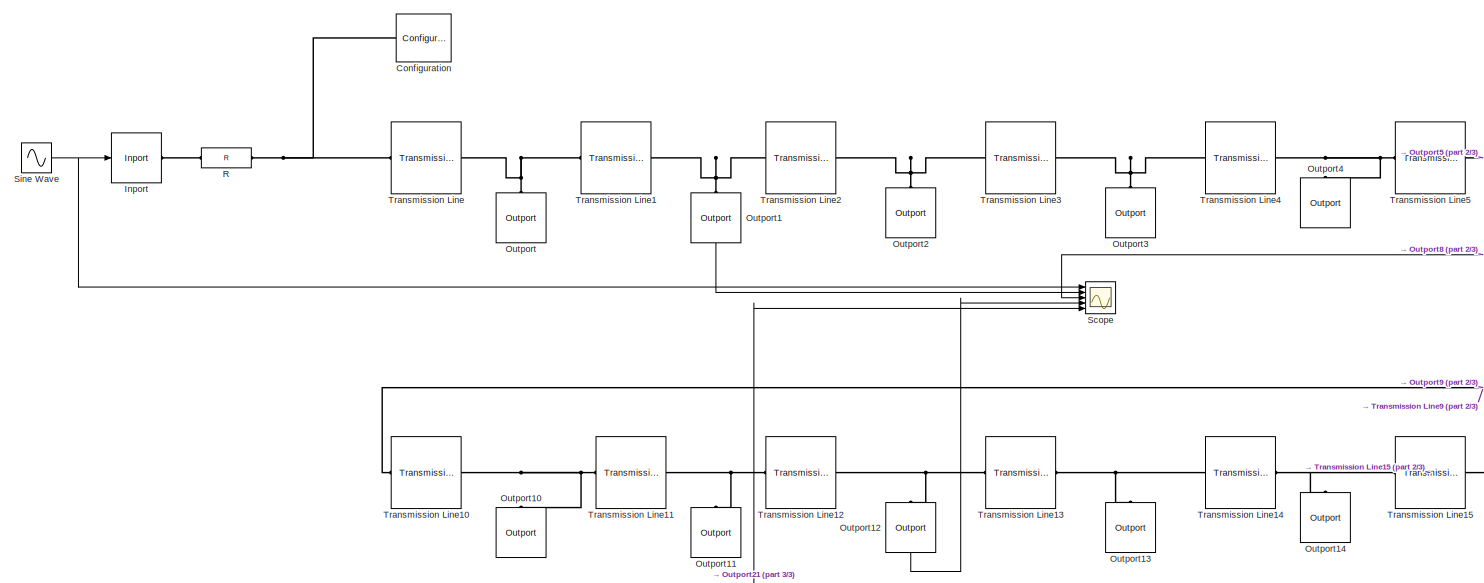
[diagram: root canvas - part 1/3, top left region]
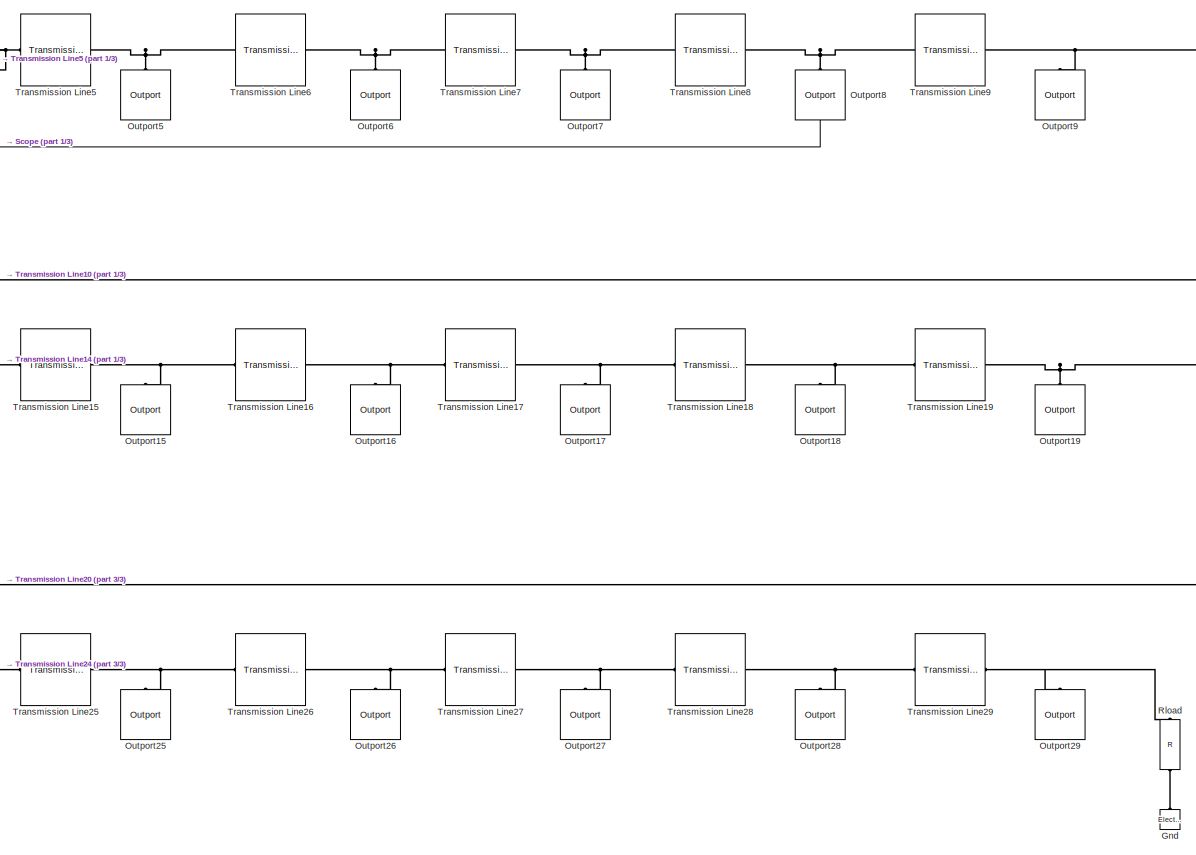
[diagram: root canvas - part 2/3, right side, full height]
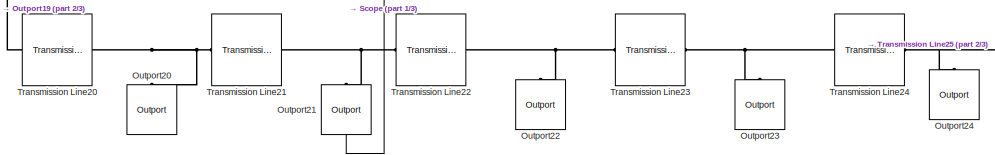
[diagram: root canvas - part 3/3, bottom left region]
MODEL slx_b399caade75f
KIND model
CONFIG AbsTol = auto
CONFIG EnableMultiTasking = off
CONFIG FixedStep = 0.0002
CONFIG MaxStep = auto
CONFIG MinStep = auto
CONFIG RelTol = 1e-6
CONFIG SampleTimeConstraint = Unconstrained
CONFIG Solver = ode45
CONFIG SolverName = ode45
CONFIG StartTime = 0.0
CONFIG StopTime = 3
BLOCK [Reference] Configuration  REF=simrfV2util1/Configuration
  Ports = [0, 0, 0, 0, 0, 1]
  SourceBlock = simrfV2util1/Configuration
  SourceProductBaseCode = RB
  SourceType = Configuration
BLOCK [Reference] Gnd  REF=simrfV2_lib/Elements/Electrical Reference
  Ports = [0, 0, 0, 0, 0, 1]
  SourceBlock = simrfV2_lib/Elements/Electrical Reference
  SourceProductBaseCode = RB
  SourceType = Electrical Reference
BLOCK [Reference] Inport  REF=simrfV2util1/Inport
  Ports = [1, 0, 0, 0, 0, 0, 1]
  SourceBlock = simrfV2util1/Inport
  SourceProductBaseCode = RB
  SourceType = Inport
BLOCK [Reference] Outport  REF=simrfV2util1/Outport
  Ports = [0, 1, 0, 0, 0, 1]
  SourceBlock = simrfV2util1/Outport
  SourceProductBaseCode = RB
  SourceType = Outport
BLOCK [Reference] Outport1  REF=simrfV2util1/Outport
  Ports = [0, 1, 0, 0, 0, 1]
  SourceBlock = simrfV2util1/Outport
  SourceProductBaseCode = RB
  SourceType = Outport
BLOCK [Reference] Outport10  REF=simrfV2util1/Outport
  Ports = [0, 1, 0, 0, 0, 1]
  SourceBlock = simrfV2util1/Outport
  SourceProductBaseCode = RB
  SourceType = Outport
BLOCK [Reference] Outport11  REF=simrfV2util1/Outport
  Ports = [0, 1, 0, 0, 0, 1]
  SourceBlock = simrfV2util1/Outport
  SourceProductBaseCode = RB
  SourceType = Outport
BLOCK [Reference] Outport12  REF=simrfV2util1/Outport
  Ports = [0, 1, 0, 0, 0, 1]
  SourceBlock = simrfV2util1/Outport
  SourceProductBaseCode = RB
  SourceType = Outport
BLOCK [Reference] Outport13  REF=simrfV2util1/Outport
  Ports = [0, 1, 0, 0, 0, 1]
  SourceBlock = simrfV2util1/Outport
  SourceProductBaseCode = RB
  SourceType = Outport
BLOCK [Reference] Outport14  REF=simrfV2util1/Outport
  Ports = [0, 1, 0, 0, 0, 1]
  SourceBlock = simrfV2util1/Outport
  SourceProductBaseCode = RB
  SourceType = Outport
BLOCK [Reference] Outport15  REF=simrfV2util1/Outport
  Ports = [0, 1, 0, 0, 0, 1]
  SourceBlock = simrfV2util1/Outport
  SourceProductBaseCode = RB
  SourceType = Outport
BLOCK [Reference] Outport16  REF=simrfV2util1/Outport
  Ports = [0, 1, 0, 0, 0, 1]
  SourceBlock = simrfV2util1/Outport
  SourceProductBaseCode = RB
  SourceType = Outport
BLOCK [Reference] Outport17  REF=simrfV2util1/Outport
  Ports = [0, 1, 0, 0, 0, 1]
  SourceBlock = simrfV2util1/Outport
  SourceProductBaseCode = RB
  SourceType = Outport
BLOCK [Reference] Outport18  REF=simrfV2util1/Outport
  Ports = [0, 1, 0, 0, 0, 1]
  SourceBlock = simrfV2util1/Outport
  SourceProductBaseCode = RB
  SourceType = Outport
BLOCK [Reference] Outport19  REF=simrfV2util1/Outport
  Ports = [0, 1, 0, 0, 0, 1]
  SourceBlock = simrfV2util1/Outport
  SourceProductBaseCode = RB
  SourceType = Outport
BLOCK [Reference] Outport2  REF=simrfV2util1/Outport
  Ports = [0, 1, 0, 0, 0, 1]
  SourceBlock = simrfV2util1/Outport
  SourceProductBaseCode = RB
  SourceType = Outport
BLOCK [Reference] Outport20  REF=simrfV2util1/Outport
  Ports = [0, 1, 0, 0, 0, 1]
  SourceBlock = simrfV2util1/Outport
  SourceProductBaseCode = RB
  SourceType = Outport
BLOCK [Reference] Outport21  REF=simrfV2util1/Outport
  Ports = [0, 1, 0, 0, 0, 1]
  SourceBlock = simrfV2util1/Outport
  SourceProductBaseCode = RB
  SourceType = Outport
BLOCK [Reference] Outport22  REF=simrfV2util1/Outport
  Ports = [0, 1, 0, 0, 0, 1]
  SourceBlock = simrfV2util1/Outport
  SourceProductBaseCode = RB
  SourceType = Outport
BLOCK [Reference] Outport23  REF=simrfV2util1/Outport
  Ports = [0, 1, 0, 0, 0, 1]
  SourceBlock = simrfV2util1/Outport
  SourceProductBaseCode = RB
  SourceType = Outport
BLOCK [Reference] Outport24  REF=simrfV2util1/Outport
  Ports = [0, 1, 0, 0, 0, 1]
  SourceBlock = simrfV2util1/Outport
  SourceProductBaseCode = RB
  SourceType = Outport
BLOCK [Reference] Outport25  REF=simrfV2util1/Outport
  Ports = [0, 1, 0, 0, 0, 1]
  SourceBlock = simrfV2util1/Outport
  SourceProductBaseCode = RB
  SourceType = Outport
BLOCK [Reference] Outport26  REF=simrfV2util1/Outport
  Ports = [0, 1, 0, 0, 0, 1]
  SourceBlock = simrfV2util1/Outport
  SourceProductBaseCode = RB
  SourceType = Outport
BLOCK [Reference] Outport27  REF=simrfV2util1/Outport
  Ports = [0, 1, 0, 0, 0, 1]
  SourceBlock = simrfV2util1/Outport
  SourceProductBaseCode = RB
  SourceType = Outport
BLOCK [Reference] Outport28  REF=simrfV2util1/Outport
  Ports = [0, 1, 0, 0, 0, 1]
  SourceBlock = simrfV2util1/Outport
  SourceProductBaseCode = RB
  SourceType = Outport
BLOCK [Reference] Outport29  REF=simrfV2util1/Outport
  Ports = [0, 1, 0, 0, 0, 1]
  SourceBlock = simrfV2util1/Outport
  SourceProductBaseCode = RB
  SourceType = Outport
BLOCK [Reference] Outport3  REF=simrfV2util1/Outport
  Ports = [0, 1, 0, 0, 0, 1]
  SourceBlock = simrfV2util1/Outport
  SourceProductBaseCode = RB
  SourceType = Outport
BLOCK [Reference] Outport4  REF=simrfV2util1/Outport
  Ports = [0, 1, 0, 0, 0, 1]
  SourceBlock = simrfV2util1/Outport
  SourceProductBaseCode = RB
  SourceType = Outport
BLOCK [Reference] Outport5  REF=simrfV2util1/Outport
  Ports = [0, 1, 0, 0, 0, 1]
  SourceBlock = simrfV2util1/Outport
  SourceProductBaseCode = RB
  SourceType = Outport
BLOCK [Reference] Outport6  REF=simrfV2util1/Outport
  Ports = [0, 1, 0, 0, 0, 1]
  SourceBlock = simrfV2util1/Outport
  SourceProductBaseCode = RB
  SourceType = Outport
BLOCK [Reference] Outport7  REF=simrfV2util1/Outport
  Ports = [0, 1, 0, 0, 0, 1]
  SourceBlock = simrfV2util1/Outport
  SourceProductBaseCode = RB
  SourceType = Outport
BLOCK [Reference] Outport8  REF=simrfV2util1/Outport
  Ports = [0, 1, 0, 0, 0, 1]
  SourceBlock = simrfV2util1/Outport
  SourceProductBaseCode = RB
  SourceType = Outport
BLOCK [Reference] Outport9  REF=simrfV2util1/Outport
  Ports = [0, 1, 0, 0, 0, 1]
  SourceBlock = simrfV2util1/Outport
  SourceProductBaseCode = RB
  SourceType = Outport
BLOCK [Reference] R  REF=simrfV2elements/R
  Ports = [0, 0, 0, 0, 0, 1, 1]
  SourceBlock = simrfV2elements/R
  SourceProductBaseCode = RB
  SourceType = Resistor
BLOCK [Reference] Rload  REF=simrfV2elements/R
  Ports = [0, 0, 0, 0, 0, 1, 1]
  SourceBlock = simrfV2elements/R
  SourceProductBaseCode = RB
  SourceType = Resistor
BLOCK [Scope] Scope
  Floating = off
  NumInputPorts = 5
  Ports = [5]
  ScopeSpecificationString = Simulink.scopes.TimeScopeBlockCfg('CurrentConfiguration', extmgr.ConfigurationSet(extmgr.Configuration('Core','General UI',true,'FigureColor',[1 1 1]),extmgr.Configuration('Core','Source UI',true),extmgr.Configuration('Sources','WiredSimulink',true),extmgr.Configuration('Visuals','Time Domain',true,'SerializedDisplays',{struct('MinYLimReal','-1.25','MaxYLimReal','1.25','YLabelReal','','MinYLimMag'...<+2237ch>
BLOCK [Sin] Sine Wave
  Frequency = 20
  Ports = [0, 1]
  SampleTime = 0
BLOCK [Reference] Transmission Line  REF=simrfV2elements/Transmission
Line
  Ports = [0, 0, 0, 0, 0, 1, 1]
  SourceBlock = simrfV2elements/Transmission\nLine
  SourceProductBaseCode = RB
  SourceType = Transmission Line
  UserDataPersistent = on
BLOCK [Reference] Transmission Line1  REF=simrfV2elements/Transmission
Line
  Ports = [0, 0, 0, 0, 0, 1, 1]
  SourceBlock = simrfV2elements/Transmission\nLine
  SourceProductBaseCode = RB
  SourceType = Transmission Line
  UserDataPersistent = on
BLOCK [Reference] Transmission Line10  REF=simrfV2elements/Transmission
Line
  Ports = [0, 0, 0, 0, 0, 1, 1]
  SourceBlock = simrfV2elements/Transmission\nLine
  SourceProductBaseCode = RB
  SourceType = Transmission Line
  UserDataPersistent = on
BLOCK [Reference] Transmission Line11  REF=simrfV2elements/Transmission
Line
  Ports = [0, 0, 0, 0, 0, 1, 1]
  SourceBlock = simrfV2elements/Transmission\nLine
  SourceProductBaseCode = RB
  SourceType = Transmission Line
  UserDataPersistent = on
BLOCK [Reference] Transmission Line12  REF=simrfV2elements/Transmission
Line
  Ports = [0, 0, 0, 0, 0, 1, 1]
  SourceBlock = simrfV2elements/Transmission\nLine
  SourceProductBaseCode = RB
  SourceType = Transmission Line
  UserDataPersistent = on
BLOCK [Reference] Transmission Line13  REF=simrfV2elements/Transmission
Line
  Ports = [0, 0, 0, 0, 0, 1, 1]
  SourceBlock = simrfV2elements/Transmission\nLine
  SourceProductBaseCode = RB
  SourceType = Transmission Line
  UserDataPersistent = on
BLOCK [Reference] Transmission Line14  REF=simrfV2elements/Transmission
Line
  Ports = [0, 0, 0, 0, 0, 1, 1]
  SourceBlock = simrfV2elements/Transmission\nLine
  SourceProductBaseCode = RB
  SourceType = Transmission Line
  UserDataPersistent = on
BLOCK [Reference] Transmission Line15  REF=simrfV2elements/Transmission
Line
  Ports = [0, 0, 0, 0, 0, 1, 1]
  SourceBlock = simrfV2elements/Transmission\nLine
  SourceProductBaseCode = RB
  SourceType = Transmission Line
  UserDataPersistent = on
BLOCK [Reference] Transmission Line16  REF=simrfV2elements/Transmission
Line
  Ports = [0, 0, 0, 0, 0, 1, 1]
  SourceBlock = simrfV2elements/Transmission\nLine
  SourceProductBaseCode = RB
  SourceType = Transmission Line
  UserDataPersistent = on
BLOCK [Reference] Transmission Line17  REF=simrfV2elements/Transmission
Line
  Ports = [0, 0, 0, 0, 0, 1, 1]
  SourceBlock = simrfV2elements/Transmission\nLine
  SourceProductBaseCode = RB
  SourceType = Transmission Line
  UserDataPersistent = on
BLOCK [Reference] Transmission Line18  REF=simrfV2elements/Transmission
Line
  Ports = [0, 0, 0, 0, 0, 1, 1]
  SourceBlock = simrfV2elements/Transmission\nLine
  SourceProductBaseCode = RB
  SourceType = Transmission Line
  UserDataPersistent = on
BLOCK [Reference] Transmission Line19  REF=simrfV2elements/Transmission
Line
  Ports = [0, 0, 0, 0, 0, 1, 1]
  SourceBlock = simrfV2elements/Transmission\nLine
  SourceProductBaseCode = RB
  SourceType = Transmission Line
  UserDataPersistent = on
BLOCK [Reference] Transmission Line2  REF=simrfV2elements/Transmission
Line
  Ports = [0, 0, 0, 0, 0, 1, 1]
  SourceBlock = simrfV2elements/Transmission\nLine
  SourceProductBaseCode = RB
  SourceType = Transmission Line
  UserDataPersistent = on
BLOCK [Reference] Transmission Line20  REF=simrfV2elements/Transmission
Line
  Ports = [0, 0, 0, 0, 0, 1, 1]
  SourceBlock = simrfV2elements/Transmission\nLine
  SourceProductBaseCode = RB
  SourceType = Transmission Line
  UserDataPersistent = on
BLOCK [Reference] Transmission Line21  REF=simrfV2elements/Transmission
Line
  Ports = [0, 0, 0, 0, 0, 1, 1]
  SourceBlock = simrfV2elements/Transmission\nLine
  SourceProductBaseCode = RB
  SourceType = Transmission Line
  UserDataPersistent = on
BLOCK [Reference] Transmission Line22  REF=simrfV2elements/Transmission
Line
  Ports = [0, 0, 0, 0, 0, 1, 1]
  SourceBlock = simrfV2elements/Transmission\nLine
  SourceProductBaseCode = RB
  SourceType = Transmission Line
  UserDataPersistent = on
BLOCK [Reference] Transmission Line23  REF=simrfV2elements/Transmission
Line
  Ports = [0, 0, 0, 0, 0, 1, 1]
  SourceBlock = simrfV2elements/Transmission\nLine
  SourceProductBaseCode = RB
  SourceType = Transmission Line
  UserDataPersistent = on
BLOCK [Reference] Transmission Line24  REF=simrfV2elements/Transmission
Line
  Ports = [0, 0, 0, 0, 0, 1, 1]
  SourceBlock = simrfV2elements/Transmission\nLine
  SourceProductBaseCode = RB
  SourceType = Transmission Line
  UserDataPersistent = on
BLOCK [Reference] Transmission Line25  REF=simrfV2elements/Transmission
Line
  Ports = [0, 0, 0, 0, 0, 1, 1]
  SourceBlock = simrfV2elements/Transmission\nLine
  SourceProductBaseCode = RB
  SourceType = Transmission Line
  UserDataPersistent = on
BLOCK [Reference] Transmission Line26  REF=simrfV2elements/Transmission
Line
  Ports = [0, 0, 0, 0, 0, 1, 1]
  SourceBlock = simrfV2elements/Transmission\nLine
  SourceProductBaseCode = RB
  SourceType = Transmission Line
  UserDataPersistent = on
BLOCK [Reference] Transmission Line27  REF=simrfV2elements/Transmission
Line
  Ports = [0, 0, 0, 0, 0, 1, 1]
  SourceBlock = simrfV2elements/Transmission\nLine
  SourceProductBaseCode = RB
  SourceType = Transmission Line
  UserDataPersistent = on
BLOCK [Reference] Transmission Line28  REF=simrfV2elements/Transmission
Line
  Ports = [0, 0, 0, 0, 0, 1, 1]
  SourceBlock = simrfV2elements/Transmission\nLine
  SourceProductBaseCode = RB
  SourceType = Transmission Line
  UserDataPersistent = on
BLOCK [Reference] Transmission Line29  REF=simrfV2elements/Transmission
Line
  Ports = [0, 0, 0, 0, 0, 1, 1]
  SourceBlock = simrfV2elements/Transmission\nLine
  SourceProductBaseCode = RB
  SourceType = Transmission Line
  UserDataPersistent = on
BLOCK [Reference] Transmission Line3  REF=simrfV2elements/Transmission
Line
  Ports = [0, 0, 0, 0, 0, 1, 1]
  SourceBlock = simrfV2elements/Transmission\nLine
  SourceProductBaseCode = RB
  SourceType = Transmission Line
  UserDataPersistent = on
BLOCK [Reference] Transmission Line4  REF=simrfV2elements/Transmission
Line
  Ports = [0, 0, 0, 0, 0, 1, 1]
  SourceBlock = simrfV2elements/Transmission\nLine
  SourceProductBaseCode = RB
  SourceType = Transmission Line
  UserDataPersistent = on
BLOCK [Reference] Transmission Line5  REF=simrfV2elements/Transmission
Line
  Ports = [0, 0, 0, 0, 0, 1, 1]
  SourceBlock = simrfV2elements/Transmission\nLine
  SourceProductBaseCode = RB
  SourceType = Transmission Line
  UserDataPersistent = on
BLOCK [Reference] Transmission Line6  REF=simrfV2elements/Transmission
Line
  Ports = [0, 0, 0, 0, 0, 1, 1]
  SourceBlock = simrfV2elements/Transmission\nLine
  SourceProductBaseCode = RB
  SourceType = Transmission Line
  UserDataPersistent = on
BLOCK [Reference] Transmission Line7  REF=simrfV2elements/Transmission
Line
  Ports = [0, 0, 0, 0, 0, 1, 1]
  SourceBlock = simrfV2elements/Transmission\nLine
  SourceProductBaseCode = RB
  SourceType = Transmission Line
  UserDataPersistent = on
BLOCK [Reference] Transmission Line8  REF=simrfV2elements/Transmission
Line
  Ports = [0, 0, 0, 0, 0, 1, 1]
  SourceBlock = simrfV2elements/Transmission\nLine
  SourceProductBaseCode = RB
  SourceType = Transmission Line
  UserDataPersistent = on
BLOCK [Reference] Transmission Line9  REF=simrfV2elements/Transmission
Line
  Ports = [0, 0, 0, 0, 0, 1, 1]
  SourceBlock = simrfV2elements/Transmission\nLine
  SourceProductBaseCode = RB
  SourceType = Transmission Line
  UserDataPersistent = on
LINE Outport12:1 -> Scope:4
LINE Outport1:1 -> Scope:2
LINE Outport21:1 -> Scope:5
LINE Outport8:1 -> Scope:3
NET Sine Wave:1 -> Inport:1, Scope:1
PNET net1: Configuration:LConn1 -- R:RConn1 -- Transmission Line:LConn1
PLINE Gnd:LConn1 -- Rload:RConn1
PLINE Inport:RConn1 -- R:LConn1
PNET net2: Outport10:LConn1 -- Transmission Line10:RConn1 -- Transmission Line11:LConn1
PNET net3: Outport11:LConn1 -- Transmission Line11:RConn1 -- Transmission Line12:LConn1
PNET net4: Outport12:LConn1 -- Transmission Line12:RConn1 -- Transmission Line13:LConn1
PNET net5: Outport13:LConn1 -- Transmission Line13:RConn1 -- Transmission Line14:LConn1
PNET net6: Outport14:LConn1 -- Transmission Line14:RConn1 -- Transmission Line15:LConn1
PNET net7: Outport15:LConn1 -- Transmission Line15:RConn1 -- Transmission Line16:LConn1
PNET net8: Outport16:LConn1 -- Transmission Line16:RConn1 -- Transmission Line17:LConn1
PNET net9: Outport17:LConn1 -- Transmission Line17:RConn1 -- Transmission Line18:LConn1
PNET net10: Outport18:LConn1 -- Transmission Line18:RConn1 -- Transmission Line19:LConn1
PNET net11: Outport19:LConn1 -- Transmission Line19:RConn1 -- Transmission Line20:LConn1
PNET net12: Outport1:LConn1 -- Transmission Line1:RConn1 -- Transmission Line2:LConn1
PNET net13: Outport20:LConn1 -- Transmission Line20:RConn1 -- Transmission Line21:LConn1
PNET net14: Outport21:LConn1 -- Transmission Line21:RConn1 -- Transmission Line22:LConn1
PNET net15: Outport22:LConn1 -- Transmission Line22:RConn1 -- Transmission Line23:LConn1
PNET net16: Outport23:LConn1 -- Transmission Line23:RConn1 -- Transmission Line24:LConn1
PNET net17: Outport24:LConn1 -- Transmission Line24:RConn1 -- Transmission Line25:LConn1
PNET net18: Outport25:LConn1 -- Transmission Line25:RConn1 -- Transmission Line26:LConn1
PNET net19: Outport26:LConn1 -- Transmission Line26:RConn1 -- Transmission Line27:LConn1
PNET net20: Outport27:LConn1 -- Transmission Line27:RConn1 -- Transmission Line28:LConn1
PNET net21: Outport28:LConn1 -- Transmission Line28:RConn1 -- Transmission Line29:LConn1
PNET net22: Outport29:LConn1 -- Rload:LConn1 -- Transmission Line29:RConn1
PNET net23: Outport2:LConn1 -- Transmission Line2:RConn1 -- Transmission Line3:LConn1
PNET net24: Outport3:LConn1 -- Transmission Line3:RConn1 -- Transmission Line4:LConn1
PNET net25: Outport4:LConn1 -- Transmission Line4:RConn1 -- Transmission Line5:LConn1
PNET net26: Outport5:LConn1 -- Transmission Line5:RConn1 -- Transmission Line6:LConn1
PNET net27: Outport6:LConn1 -- Transmission Line6:RConn1 -- Transmission Line7:LConn1
PNET net28: Outport7:LConn1 -- Transmission Line7:RConn1 -- Transmission Line8:LConn1
PNET net29: Outport8:LConn1 -- Transmission Line8:RConn1 -- Transmission Line9:LConn1
PNET net30: Outport9:LConn1 -- Transmission Line10:LConn1 -- Transmission Line9:RConn1
PNET net31: Outport:LConn1 -- Transmission Line1:LConn1 -- Transmission Line:RConn1
note: NET lines group one-source signal fan-out (src -> all destinations, sorted); 1:1 wires keep LINE; PNET lines group multi-terminal physical nets as a canonical sorted terminal list (undirected conserving connections); 2-terminal nets keep the pairwise PLINE form
